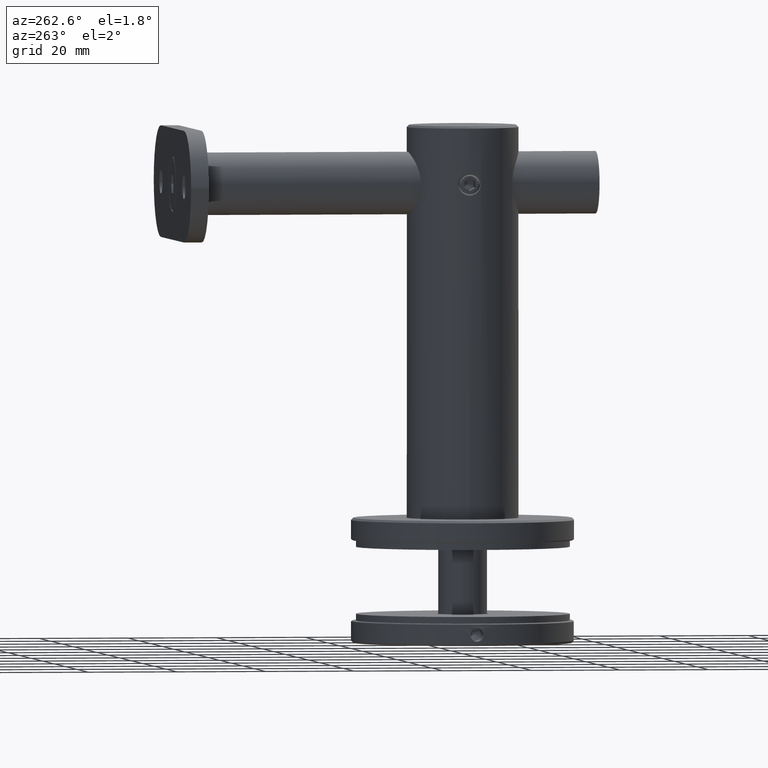
[diagram: clean part render]
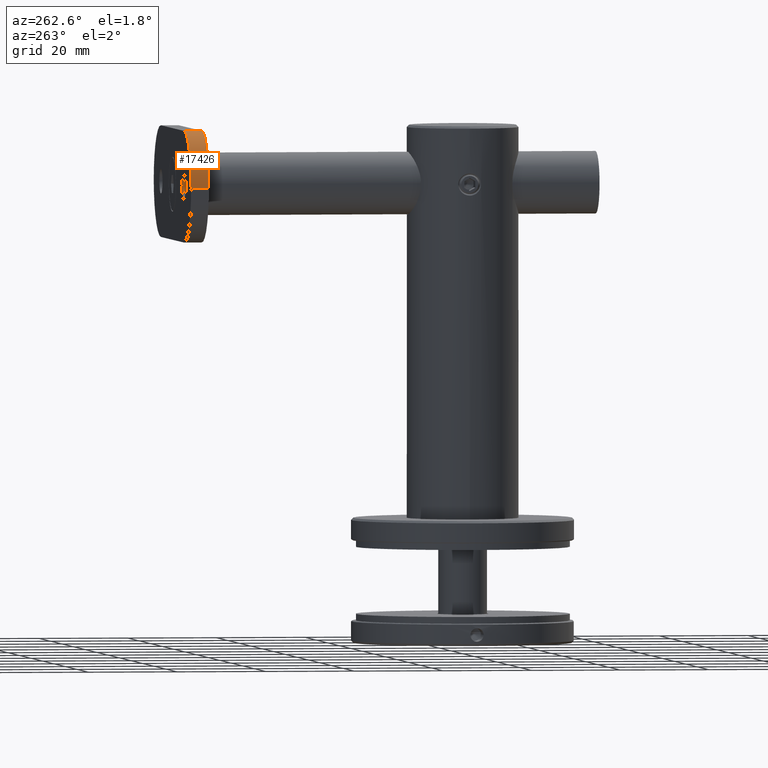
[diagram: same view with one face highlighted and labeled with its STEP entity id]
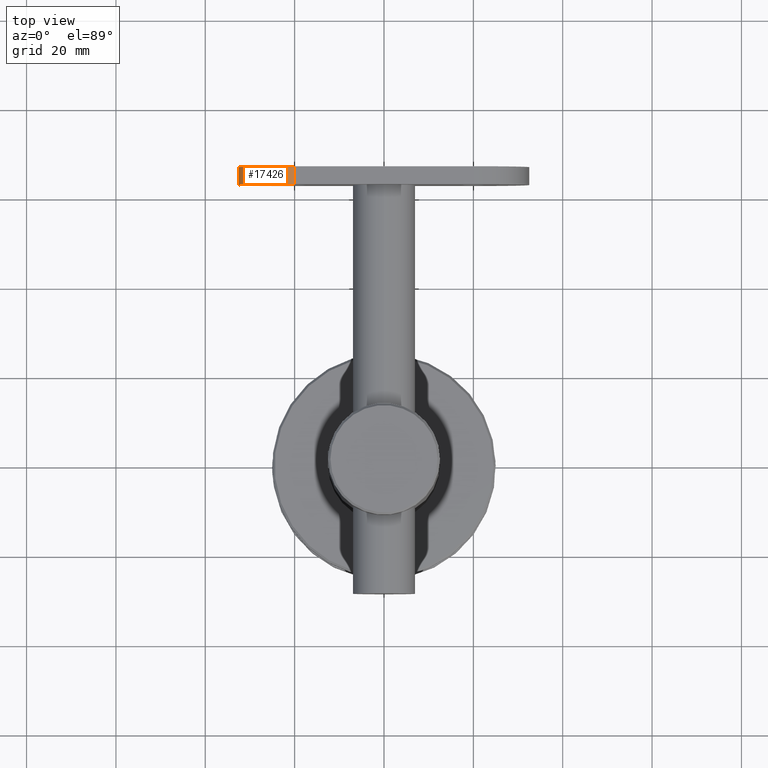
[diagram: same view with one face highlighted and labeled with its STEP entity id]
A machine part, auxiliary view. The second image highlights one B-rep face of the part: STEP entity #17426.
A second angle (top view) of the same face is appended — the face is thin or edge-on in the first view.
In plain terms, the highlighted cylindrical surface (partial cylindrical patch) has radius 12.5 mm, axis along (0, 1, 0).
Its self-contained STEP definition (entity closure, byte-faithful):
#1880 = DIRECTION ( 'NONE',  ( -0.0000000000000000000, -1.000000000000000000, -0.0000000000000000000 ) ) ;
#2728 = EDGE_CURVE ( 'NONE', #20701, #5028, #9434, .T. ) ;
#3379 = ORIENTED_EDGE ( 'NONE', *, *, #3773, .F. ) ;
#3773 = EDGE_CURVE ( 'NONE', #8830, #20701, #10424, .T. ) ;
#3813 = CARTESIAN_POINT ( 'NONE',  ( 12.50000000000000000, 3.999999999999996400, 20.00000000000000000 ) ) ;
#3840 = CARTESIAN_POINT ( 'NONE',  ( 0.0000000000000000000, 3.999999999999996400, 32.50000000000000000 ) ) ;
#4042 = CARTESIAN_POINT ( 'NONE',  ( 0.0000000000000000000, 0.0000000000000000000, 32.50000000000000000 ) ) ;
#4563 = DIRECTION ( 'NONE',  ( 0.0000000000000000000, 0.0000000000000000000, 1.000000000000000000 ) ) ;
#5028 = VERTEX_POINT ( 'NONE', #5623 ) ;
#5070 = CYLINDRICAL_SURFACE ( 'NONE', #14326, 12.50000000000000000 ) ;
#5266 = CARTESIAN_POINT ( 'NONE',  ( 12.50000000000000000, 3.999999999999996400, 20.00000000000000000 ) ) ;
#5623 = CARTESIAN_POINT ( 'NONE',  ( 0.0000000000000000000, -3.370833141065685400E-015, 32.50000000000000000 ) ) ;
#5958 = CARTESIAN_POINT ( 'NONE',  ( 0.0000000000000000000, -3.370833141065685400E-015, 20.00000000000000000 ) ) ;
#5978 = VERTEX_POINT ( 'NONE', #3840 ) ;
#6580 = EDGE_CURVE ( 'NONE', #5028, #5978, #19385, .T. ) ;
#7634 = DIRECTION ( 'NONE',  ( 0.0000000000000000000, 0.0000000000000000000, 1.000000000000000000 ) ) ;
#7765 = DIRECTION ( 'NONE',  ( -0.0000000000000000000, -1.000000000000000000, 0.0000000000000000000 ) ) ;
#8032 = DIRECTION ( 'NONE',  ( -0.0000000000000000000, 1.000000000000000000, -0.0000000000000000000 ) ) ;
#8830 = VERTEX_POINT ( 'NONE', #3813 ) ;
#9434 = CIRCLE ( 'NONE', #19840, 12.50000000000000000 ) ;
#9474 = AXIS2_PLACEMENT_3D ( 'NONE', #15900, #8032, #11313 ) ;
#9768 = CARTESIAN_POINT ( 'NONE',  ( 12.50000000000000000, -3.370833141065685400E-015, 20.00000000000000000 ) ) ;
#10424 = LINE ( 'NONE', #5266, #19693 ) ;
#10862 = VECTOR ( 'NONE', #15220, 1000.000000000000000 ) ;
#11313 = DIRECTION ( 'NONE',  ( 0.0000000000000000000, 0.0000000000000000000, -1.000000000000000000 ) ) ;
#12058 = EDGE_LOOP ( 'NONE', ( #3379, #17392, #17305, #20136 ) ) ;
#14326 = AXIS2_PLACEMENT_3D ( 'NONE', #17466, #18782, #4563 ) ;
#15220 = DIRECTION ( 'NONE',  ( 0.0000000000000000000, 1.000000000000000000, 0.0000000000000000000 ) ) ;
#15698 = EDGE_CURVE ( 'NONE', #5978, #8830, #18758, .T. ) ;
#15900 = CARTESIAN_POINT ( 'NONE',  ( 0.0000000000000000000, 3.999999999999996400, 20.00000000000000000 ) ) ;
#17107 = FACE_OUTER_BOUND ( 'NONE', #12058, .T. ) ;
#17305 = ORIENTED_EDGE ( 'NONE', *, *, #6580, .F. ) ;
#17392 = ORIENTED_EDGE ( 'NONE', *, *, #15698, .F. ) ;
#17426 = ADVANCED_FACE ( 'NONE', ( #17107 ), #5070, .T. ) ;
#17466 = CARTESIAN_POINT ( 'NONE',  ( 0.0000000000000000000, 0.0000000000000000000, 20.00000000000000000 ) ) ;
#18758 = CIRCLE ( 'NONE', #9474, 12.50000000000000000 ) ;
#18782 = DIRECTION ( 'NONE',  ( 0.0000000000000000000, 1.000000000000000000, 0.0000000000000000000 ) ) ;
#19385 = LINE ( 'NONE', #4042, #10862 ) ;
#19693 = VECTOR ( 'NONE', #1880, 1000.000000000000000 ) ;
#19840 = AXIS2_PLACEMENT_3D ( 'NONE', #5958, #7765, #7634 ) ;
#20136 = ORIENTED_EDGE ( 'NONE', *, *, #2728, .F. ) ;
#20701 = VERTEX_POINT ( 'NONE', #9768 ) ;